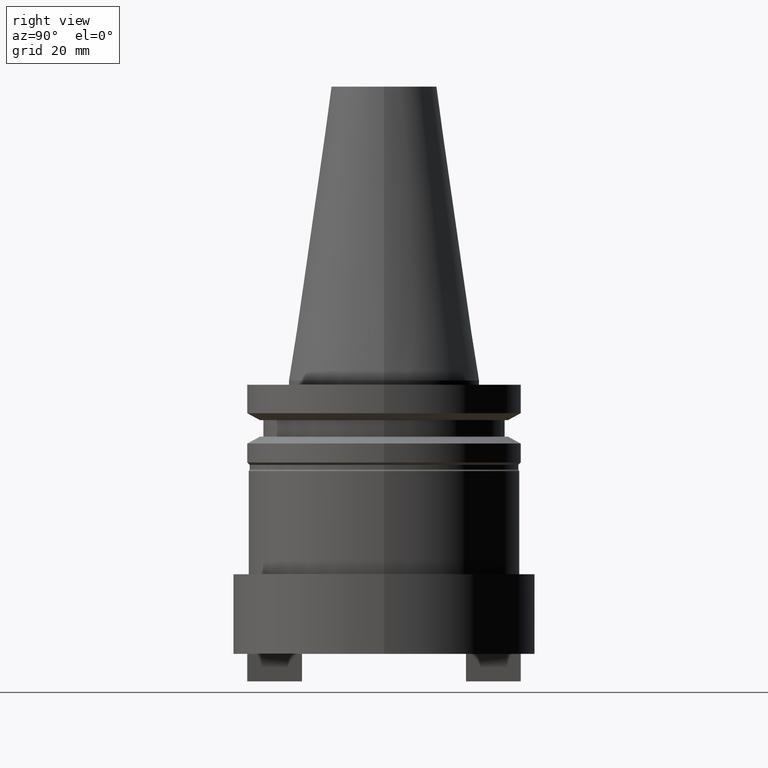
[diagram: clean part render]
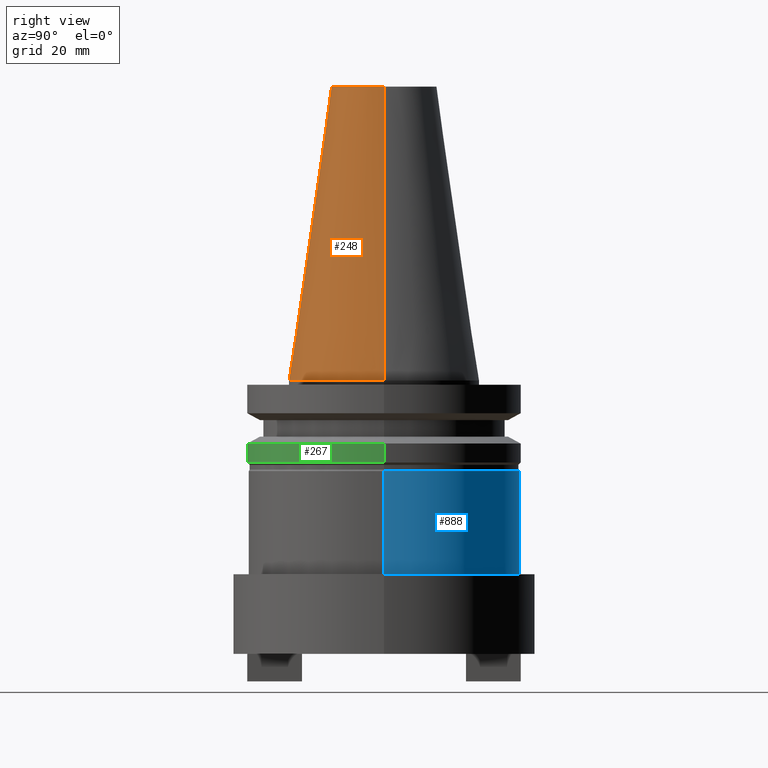
[diagram: same view with three faces highlighted in distinct colors, each labeled with its STEP entity id]
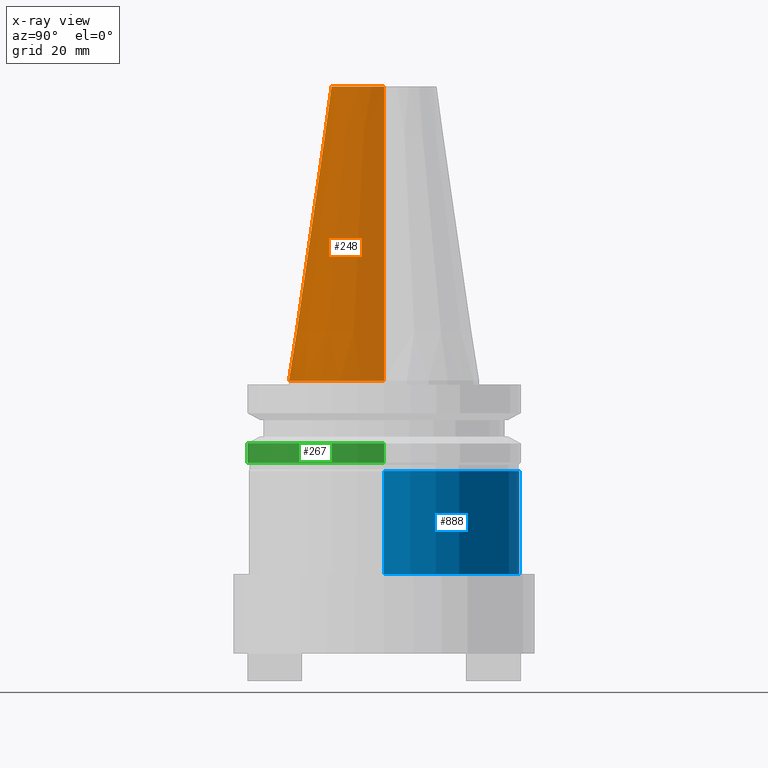
[diagram: x-ray of the same camera — body ghosted, the three highlighted faces saturated]
A machine part, right view with three faces highlighted in distinct colors.
The next image is the same camera in x-ray (body ghosted, the three faces saturated) — at least one of them is partly hidden behind the body in this view.
Their STEP definitions:

[orange] entity #248 — the highlighted conical surface has half-angle 8.297 deg.
#1 = DIRECTION ( 'NONE',  ( -1.000000000000000000, 0.000000000000000000, 0.000000000000000000 ) ) ;
#13 = VERTEX_POINT ( 'NONE', #530 ) ;
#25 = CARTESIAN_POINT ( 'NONE',  ( 0.000000000000000000, 0.000000000000000000, 0.000000000000000000 ) ) ;
#46 = VECTOR ( 'NONE', #1019, 999.9999999999998863 ) ;
#62 = VECTOR ( 'NONE', #1106, 999.9999999999998863 ) ;
#87 = FACE_OUTER_BOUND ( 'NONE', #1096, .T. ) ;
#105 = VERTEX_POINT ( 'NONE', #332 ) ;
#109 = DIRECTION ( 'NONE',  ( 1.000000000000000000, 0.000000000000000000, 0.000000000000000000 ) ) ;
#119 = DIRECTION ( 'NONE',  ( 1.000000000000000000, 0.000000000000000000, 0.000000000000000000 ) ) ;
#186 = EDGE_CURVE ( 'NONE', #13, #187, #440, .T. ) ;
#187 = VERTEX_POINT ( 'NONE', #257 ) ;
#248 = ADVANCED_FACE ( 'NONE', ( #87 ), #469, .T. ) ;
#257 = CARTESIAN_POINT ( 'NONE',  ( 22.22500000000000142, 2.721777511104992849E-15, 0.000000000000000000 ) ) ;
#326 = ORIENTED_EDGE ( 'NONE', *, *, #892, .F. ) ;
#332 = CARTESIAN_POINT ( 'NONE',  ( -12.27178102086201150, 0.000000000000000000, 68.25000000000000000 ) ) ;
#356 = LINE ( 'NONE', #812, #46 ) ;
#422 = EDGE_CURVE ( 'NONE', #833, #187, #842, .T. ) ;
#440 = LINE ( 'NONE', #1031, #62 ) ;
#469 = CONICAL_SURFACE ( 'NONE', #1061, 22.22500000000000142, 0.1448138465474119174 ) ;
#530 = CARTESIAN_POINT ( 'NONE',  ( 12.27178102086201150, 2.112318622904291439E-15, 68.25000000000000000 ) ) ;
#560 = CARTESIAN_POINT ( 'NONE',  ( 0.000000000000000000, 0.000000000000000000, 0.000000000000000000 ) ) ;
#590 = ORIENTED_EDGE ( 'NONE', *, *, #1011, .T. ) ;
#618 = DIRECTION ( 'NONE',  ( -0.000000000000000000, -0.000000000000000000, 1.000000000000000000 ) ) ;
#684 = ORIENTED_EDGE ( 'NONE', *, *, #422, .T. ) ;
#712 = CIRCLE ( 'NONE', #1083, 12.27178102086201150 ) ;
#812 = CARTESIAN_POINT ( 'NONE',  ( -22.22500000000000142, 0.000000000000000000, 0.000000000000000000 ) ) ;
#833 = VERTEX_POINT ( 'NONE', #894 ) ;
#842 = CIRCLE ( 'NONE', #1178, 22.22500000000000142 ) ;
#879 = CARTESIAN_POINT ( 'NONE',  ( 0.000000000000000000, 0.000000000000000000, 68.25000000000000000 ) ) ;
#892 = EDGE_CURVE ( 'NONE', #105, #13, #712, .T. ) ;
#894 = CARTESIAN_POINT ( 'NONE',  ( -22.22500000000000142, 0.000000000000000000, 0.000000000000000000 ) ) ;
#918 = ORIENTED_EDGE ( 'NONE', *, *, #186, .F. ) ;
#937 = DIRECTION ( 'NONE',  ( -0.000000000000000000, -0.000000000000000000, 1.000000000000000000 ) ) ;
#1011 = EDGE_CURVE ( 'NONE', #105, #833, #356, .T. ) ;
#1019 = DIRECTION ( 'NONE',  ( -0.1443082272672999711, 0.000000000000000000, -0.9895327864921755756 ) ) ;
#1031 = CARTESIAN_POINT ( 'NONE',  ( 22.22500000000000142, 2.721777511104992849E-15, 0.000000000000000000 ) ) ;
#1061 = AXIS2_PLACEMENT_3D ( 'NONE', #560, #1202, #1 ) ;
#1083 = AXIS2_PLACEMENT_3D ( 'NONE', #879, #618, #119 ) ;
#1096 = EDGE_LOOP ( 'NONE', ( #918, #326, #590, #684 ) ) ;
#1106 = DIRECTION ( 'NONE',  ( 0.1443082272672999711, 1.767266086135276757E-17, -0.9895327864921755756 ) ) ;
#1178 = AXIS2_PLACEMENT_3D ( 'NONE', #25, #937, #109 ) ;
#1202 = DIRECTION ( 'NONE',  ( 0.000000000000000000, 0.000000000000000000, -1.000000000000000000 ) ) ;

[blue] entity #888 — the highlighted cylindrical surface (partial cylindrical patch) has radius 31.4 mm, axis along (-0, -0, 1).
#31 = DIRECTION ( 'NONE',  ( -0.000000000000000000, -0.000000000000000000, 1.000000000000000000 ) ) ;
#32 = DIRECTION ( 'NONE',  ( 1.000000000000000000, 0.000000000000000000, 0.000000000000000000 ) ) ;
#100 = DIRECTION ( 'NONE',  ( -0.000000000000000000, -0.000000000000000000, 1.000000000000000000 ) ) ;
#132 = DIRECTION ( 'NONE',  ( -0.000000000000000000, -0.000000000000000000, 1.000000000000000000 ) ) ;
#233 = AXIS2_PLACEMENT_3D ( 'NONE', #971, #31, #1151 ) ;
#262 = CARTESIAN_POINT ( 'NONE',  ( 0.000000000000000000, 0.000000000000000000, -45.00000000000000000 ) ) ;
#263 = EDGE_CURVE ( 'NONE', #1084, #1088, #861, .T. ) ;
#270 = VERTEX_POINT ( 'NONE', #1099 ) ;
#321 = LINE ( 'NONE', #900, #593 ) ;
#342 = EDGE_CURVE ( 'NONE', #270, #1032, #1022, .T. ) ;
#354 = EDGE_CURVE ( 'NONE', #1088, #270, #763, .T. ) ;
#490 = CARTESIAN_POINT ( 'NONE',  ( 0.000000000000000000, 0.000000000000000000, -21.05000000000000071 ) ) ;
#543 = EDGE_CURVE ( 'NONE', #1084, #1032, #321, .T. ) ;
#548 = DIRECTION ( 'NONE',  ( -1.000000000000000000, 0.000000000000000000, 0.000000000000000000 ) ) ;
#576 = CARTESIAN_POINT ( 'NONE',  ( 31.39999999999999858, 0.000000000000000000, 68.25000000000000000 ) ) ;
#593 = VECTOR ( 'NONE', #132, 1000.000000000000000 ) ;
#605 = CYLINDRICAL_SURFACE ( 'NONE', #233, 31.39999999999999858 ) ;
#633 = DIRECTION ( 'NONE',  ( 0.000000000000000000, 0.000000000000000000, -1.000000000000000000 ) ) ;
#649 = AXIS2_PLACEMENT_3D ( 'NONE', #490, #100, #32 ) ;
#679 = ORIENTED_EDGE ( 'NONE', *, *, #354, .F. ) ;
#694 = ORIENTED_EDGE ( 'NONE', *, *, #342, .F. ) ;
#716 = CARTESIAN_POINT ( 'NONE',  ( -31.39999999999999858, 3.845390949322688543E-15, -21.05000000000000071 ) ) ;
#748 = AXIS2_PLACEMENT_3D ( 'NONE', #262, #633, #548 ) ;
#763 = LINE ( 'NONE', #576, #1158 ) ;
#861 = CIRCLE ( 'NONE', #748, 31.39999999999999858 ) ;
#868 = DIRECTION ( 'NONE',  ( -0.000000000000000000, -0.000000000000000000, 1.000000000000000000 ) ) ;
#888 = ADVANCED_FACE ( 'NONE', ( #984 ), #605, .T. ) ;
#900 = CARTESIAN_POINT ( 'NONE',  ( -31.39999999999999858, 3.845390949322688543E-15, 68.25000000000000000 ) ) ;
#971 = CARTESIAN_POINT ( 'NONE',  ( 0.000000000000000000, 0.000000000000000000, 68.25000000000000000 ) ) ;
#984 = FACE_OUTER_BOUND ( 'NONE', #1189, .T. ) ;
#1001 = CARTESIAN_POINT ( 'NONE',  ( -31.39999999999999858, 3.845390949322688543E-15, -45.00000000000000000 ) ) ;
#1022 = CIRCLE ( 'NONE', #649, 31.39999999999999858 ) ;
#1032 = VERTEX_POINT ( 'NONE', #716 ) ;
#1084 = VERTEX_POINT ( 'NONE', #1001 ) ;
#1088 = VERTEX_POINT ( 'NONE', #1190 ) ;
#1099 = CARTESIAN_POINT ( 'NONE',  ( 31.39999999999999858, 0.000000000000000000, -21.05000000000000071 ) ) ;
#1125 = ORIENTED_EDGE ( 'NONE', *, *, #543, .T. ) ;
#1151 = DIRECTION ( 'NONE',  ( 1.000000000000000000, 0.000000000000000000, 0.000000000000000000 ) ) ;
#1158 = VECTOR ( 'NONE', #868, 1000.000000000000000 ) ;
#1161 = ORIENTED_EDGE ( 'NONE', *, *, #263, .F. ) ;
#1189 = EDGE_LOOP ( 'NONE', ( #1161, #1125, #694, #679 ) ) ;
#1190 = CARTESIAN_POINT ( 'NONE',  ( 31.39999999999999858, 0.000000000000000000, -45.00000000000000000 ) ) ;

[green] entity #267 — the highlighted cylindrical surface (partial cylindrical patch) has radius 31.75 mm, axis along (-0, -0, 1).
#8 = DIRECTION ( 'NONE',  ( -0.000000000000000000, -0.000000000000000000, 1.000000000000000000 ) ) ;
#23 = CARTESIAN_POINT ( 'NONE',  ( 31.75000000000000000, 0.000000000000000000, 68.25000000000000000 ) ) ;
#42 = CIRCLE ( 'NONE', #726, 31.74999999999999289 ) ;
#63 = AXIS2_PLACEMENT_3D ( 'NONE', #816, #635, #1116 ) ;
#95 = VERTEX_POINT ( 'NONE', #313 ) ;
#98 = LINE ( 'NONE', #23, #253 ) ;
#116 = CARTESIAN_POINT ( 'NONE',  ( -31.75000000000000000, 3.888253587292846476E-15, 68.25000000000000000 ) ) ;
#118 = ORIENTED_EDGE ( 'NONE', *, *, #1038, .F. ) ;
#135 = ORIENTED_EDGE ( 'NONE', *, *, #412, .F. ) ;
#158 = DIRECTION ( 'NONE',  ( -0.000000000000000000, -0.000000000000000000, 1.000000000000000000 ) ) ;
#207 = VECTOR ( 'NONE', #8, 1000.000000000000000 ) ;
#253 = VECTOR ( 'NONE', #933, 1000.000000000000000 ) ;
#256 = CARTESIAN_POINT ( 'NONE',  ( 31.75000000000000000, 0.000000000000000000, -14.65472339340266572 ) ) ;
#267 = ADVANCED_FACE ( 'NONE', ( #463 ), #930, .T. ) ;
#313 = CARTESIAN_POINT ( 'NONE',  ( -31.75000000000000000, 3.888253587292846476E-15, -14.65472339340266572 ) ) ;
#362 = CARTESIAN_POINT ( 'NONE',  ( 31.74999999999999289, 0.000000000000000000, -19.04999999999999716 ) ) ;
#372 = DIRECTION ( 'NONE',  ( 1.000000000000000000, 0.000000000000000000, 0.000000000000000000 ) ) ;
#386 = EDGE_LOOP ( 'NONE', ( #135, #401, #857, #118 ) ) ;
#394 = EDGE_CURVE ( 'NONE', #765, #795, #42, .T. ) ;
#401 = ORIENTED_EDGE ( 'NONE', *, *, #394, .T. ) ;
#412 = EDGE_CURVE ( 'NONE', #765, #95, #959, .T. ) ;
#431 = AXIS2_PLACEMENT_3D ( 'NONE', #554, #158, #927 ) ;
#463 = FACE_OUTER_BOUND ( 'NONE', #386, .T. ) ;
#554 = CARTESIAN_POINT ( 'NONE',  ( 0.000000000000000000, 0.000000000000000000, 68.25000000000000000 ) ) ;
#609 = VERTEX_POINT ( 'NONE', #256 ) ;
#635 = DIRECTION ( 'NONE',  ( -0.000000000000000000, -0.000000000000000000, 1.000000000000000000 ) ) ;
#662 = CARTESIAN_POINT ( 'NONE',  ( -31.74999999999999289, 3.888253587292845687E-15, -19.04999999999999716 ) ) ;
#663 = CARTESIAN_POINT ( 'NONE',  ( 0.000000000000000000, 0.000000000000000000, -19.04999999999999716 ) ) ;
#726 = AXIS2_PLACEMENT_3D ( 'NONE', #663, #1129, #372 ) ;
#765 = VERTEX_POINT ( 'NONE', #662 ) ;
#767 = EDGE_CURVE ( 'NONE', #795, #609, #98, .T. ) ;
#795 = VERTEX_POINT ( 'NONE', #362 ) ;
#816 = CARTESIAN_POINT ( 'NONE',  ( 0.000000000000000000, 0.000000000000000000, -14.65472339340266572 ) ) ;
#857 = ORIENTED_EDGE ( 'NONE', *, *, #767, .T. ) ;
#927 = DIRECTION ( 'NONE',  ( 1.000000000000000000, 0.000000000000000000, 0.000000000000000000 ) ) ;
#930 = CYLINDRICAL_SURFACE ( 'NONE', #431, 31.75000000000000000 ) ;
#933 = DIRECTION ( 'NONE',  ( -0.000000000000000000, -0.000000000000000000, 1.000000000000000000 ) ) ;
#959 = LINE ( 'NONE', #116, #207 ) ;
#1002 = CIRCLE ( 'NONE', #63, 31.75000000000000000 ) ;
#1038 = EDGE_CURVE ( 'NONE', #95, #609, #1002, .T. ) ;
#1116 = DIRECTION ( 'NONE',  ( 1.000000000000000000, 0.000000000000000000, 0.000000000000000000 ) ) ;
#1129 = DIRECTION ( 'NONE',  ( -0.000000000000000000, -0.000000000000000000, 1.000000000000000000 ) ) ;